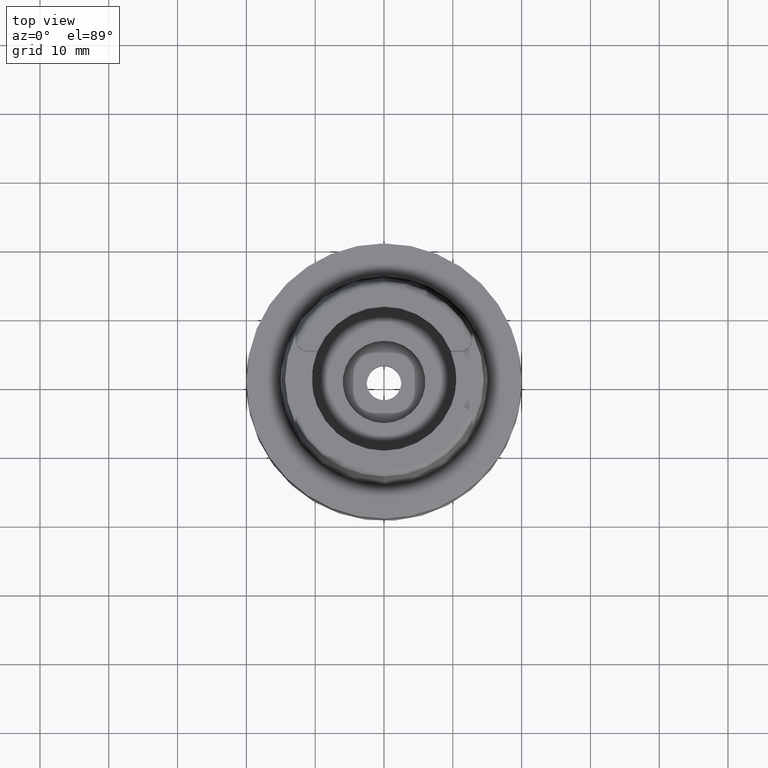
[diagram: clean part render]
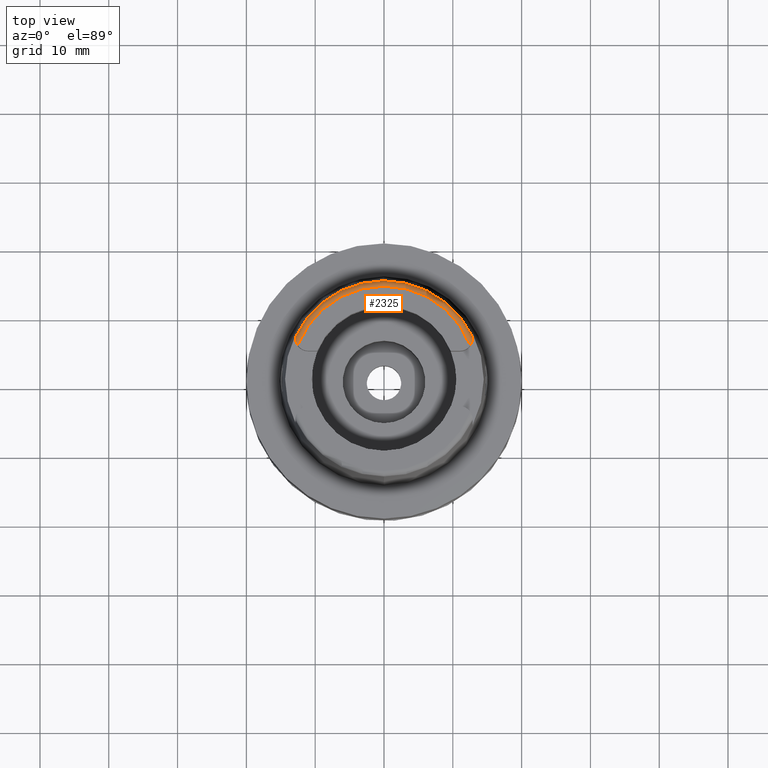
[diagram: same view with one face highlighted and labeled with its STEP entity id]
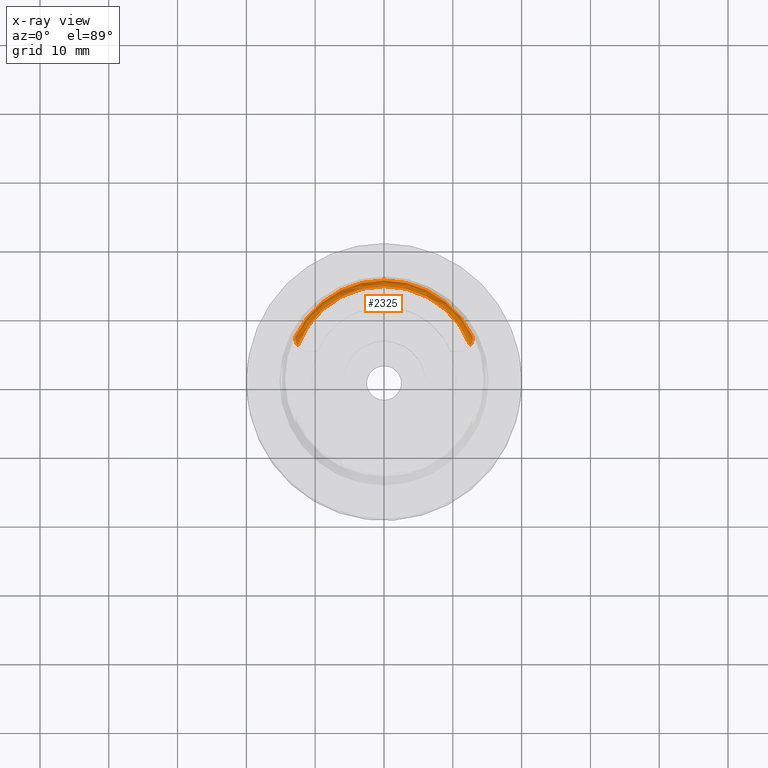
[diagram: x-ray of the same camera — body ghosted, the highlighted face saturated]
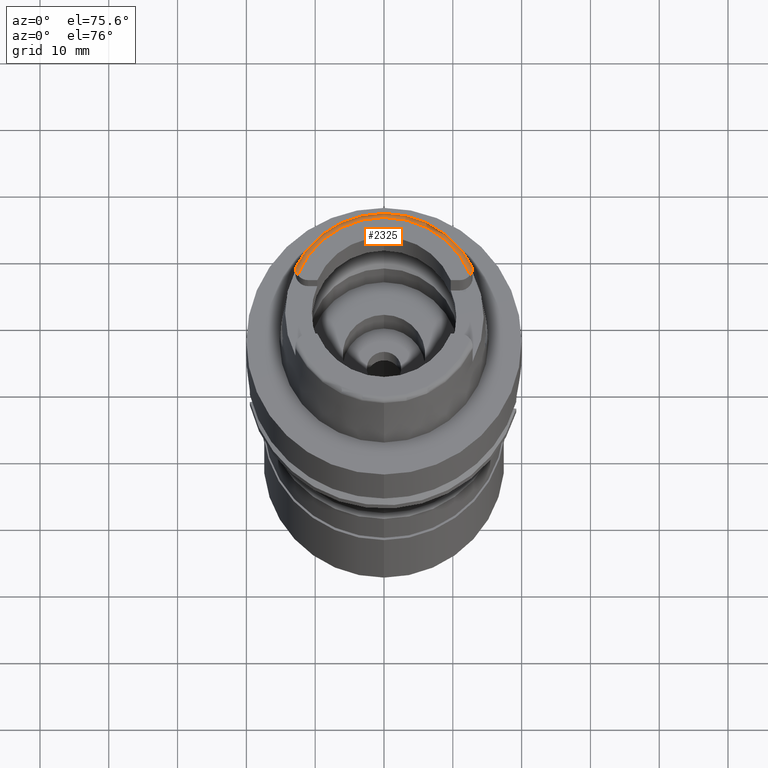
[diagram: same view with one face highlighted and labeled with its STEP entity id]
A machine part, top view. The second image highlights one B-rep face of the part: STEP entity #2325.
The next image is the same camera in x-ray: the body ghosted, the highlighted face saturated — about 0% of this face is hidden behind the body in this view.
A second angle (auxiliary view) of the same face is appended — the face is thin or edge-on in the first view.
In plain terms, the highlighted toroidal blend (fillet) surface has major radius 13.439 mm and minor (blend) radius 0.8 mm.
Its self-contained STEP definition (entity closure, byte-faithful):
#27 = CARTESIAN_POINT ( 'NONE',  ( -12.64389823460517981, 4.987559460299655356, 19.98922798322290717 ) ) ;
#46 = EDGE_CURVE ( 'NONE', #1021, #1718, #457, .T. ) ;
#70 = DIRECTION ( 'NONE',  ( 0.0000000000000000000, 0.0000000000000000000, -1.000000000000000000 ) ) ;
#105 = ORIENTED_EDGE ( 'NONE', *, *, #3492, .F. ) ;
#106 = CARTESIAN_POINT ( 'NONE',  ( -12.82744306054747163, 5.460575906995444484, 19.82401658476522144 ) ) ;
#212 = VERTEX_POINT ( 'NONE', #5254 ) ;
#255 = AXIS2_PLACEMENT_3D ( 'NONE', #2771, #4113, #2007 ) ;
#320 = CARTESIAN_POINT ( 'NONE',  ( -12.87999984758999972, 6.024574419621999688, 19.38140592774999860 ) ) ;
#380 = CARTESIAN_POINT ( 'NONE',  ( 12.82745486551941916, 5.460625297467630368, 19.82399013494508822 ) ) ;
#457 = B_SPLINE_CURVE_WITH_KNOTS ( 'NONE', 3,
 ( #3428, #4694, #27, #844, #2615, #4284, #1791, #2156, #106, #1366, #513, #3880, #2209, #3049 ),
 .UNSPECIFIED., .F., .F.,
 ( 4, 2, 2, 2, 2, 2, 4 ),
 ( 0.0000000000000000000, 0.2500000000000012768, 0.3750000000000009992, 0.5000000000000007772, 0.6250000000000005551, 0.7500000000000002220, 1.000000000000000000 ),
 .UNSPECIFIED. ) ;
#484 = FACE_OUTER_BOUND ( 'NONE', #5063, .T. ) ;
#500 = CARTESIAN_POINT ( 'NONE',  ( 0.0000000000000000000, 1.459778984583999657E-14, 19.23995141520000018 ) ) ;
#501 = DIRECTION ( 'NONE',  ( 0.0000000000000000000, 1.000000000000000000, 0.0000000000000000000 ) ) ;
#513 = CARTESIAN_POINT ( 'NONE',  ( -12.85775438148876759, 5.612682368652730069, 19.74128417118501133 ) ) ;
#571 = CARTESIAN_POINT ( 'NONE',  ( 12.73822212237592666, 5.159219471015187075, 19.95690879106319926 ) ) ;
#580 = DIRECTION ( 'NONE',  ( 0.0000000000000000000, 0.0000000000000000000, -1.000000000000000000 ) ) ;
#737 = CARTESIAN_POINT ( 'NONE',  ( -12.88000004355000172, 5.975771536551000018, 19.45451906537000042 ) ) ;
#802 = EDGE_CURVE ( 'NONE', #1718, #5011, #3536, .T. ) ;
#844 = CARTESIAN_POINT ( 'NONE',  ( -12.70904137643579368, 5.120141916626728573, 19.95691193289166065 ) ) ;
#875 = CARTESIAN_POINT ( 'NONE',  ( 12.87042361990018158, 5.709163046207873293, 19.68052350906720349 ) ) ;
#899 = CARTESIAN_POINT ( 'NONE',  ( 12.81380718898481597, 5.407804085198687716, 19.84918076872118320 ) ) ;
#1021 = VERTEX_POINT ( 'NONE', #3897 ) ;
#1220 = EDGE_CURVE ( 'NONE', #1021, #1298, #3958, .T. ) ;
#1239 = CARTESIAN_POINT ( 'NONE',  ( 12.88000000000000078, 5.904999999999999361, 19.52698079989999869 ) ) ;
#1292 = CARTESIAN_POINT ( 'NONE',  ( 12.87421802856394848, 5.752092751324438424, 19.65104068428572859 ) ) ;
#1298 = VERTEX_POINT ( 'NONE', #4946 ) ;
#1345 = EDGE_CURVE ( 'NONE', #212, #4934, #3778, .T. ) ;
#1366 = CARTESIAN_POINT ( 'NONE',  ( -12.84906366375178521, 5.561453087077073754, 19.77088246347384626 ) ) ;
#1371 = CARTESIAN_POINT ( 'NONE',  ( 12.54148453352999937, 4.828791175991000273, 20.00000000000000000 ) ) ;
#1409 = AXIS2_PLACEMENT_3D ( 'NONE', #4226, #4684, #501 ) ;
#1440 = B_SPLINE_CURVE_WITH_KNOTS ( 'NONE', 3,
 ( #1239, #4131, #3717, #1292, #875, #1627, #3297, #380, #899, #571, #4786, #1371 ),
 .UNSPECIFIED., .F., .F.,
 ( 4, 2, 2, 2, 2, 4 ),
 ( 0.0000000000000000000, 0.1250000000000006106, 0.2500000000000012212, 0.3750000000000018319, 0.5000000000000024425, 1.000000000000000000 ),
 .UNSPECIFIED. ) ;
#1565 = CARTESIAN_POINT ( 'NONE',  ( 12.88000642478999858, 6.068395837171999929, 19.23995141520000018 ) ) ;
#1627 = CARTESIAN_POINT ( 'NONE',  ( 12.85756953630095367, 5.611278962010326943, 19.74217032426101426 ) ) ;
#1681 = DIRECTION ( 'NONE',  ( -0.001485959642573941777, -0.9999988959613608230, 0.0000000000000000000 ) ) ;
#1706 = CARTESIAN_POINT ( 'NONE',  ( 0.0000000000000000000, 1.459778984583999657E-14, 19.19999999999999929 ) ) ;
#1718 = VERTEX_POINT ( 'NONE', #4967 ) ;
#1791 = CARTESIAN_POINT ( 'NONE',  ( -12.78304080223922057, 5.306621608253750288, 19.89302625439962213 ) ) ;
#1963 = CARTESIAN_POINT ( 'NONE',  ( -12.88000000000000078, 5.904999999999999361, 19.52698079989999869 ) ) ;
#1995 = ORIENTED_EDGE ( 'NONE', *, *, #1220, .T. ) ;
#2007 = DIRECTION ( 'NONE',  ( 0.001485959642573941777, 0.9999988959613608230, 0.0000000000000000000 ) ) ;
#2072 = CARTESIAN_POINT ( 'NONE',  ( 12.88000026769999984, 6.024572578858000682, 19.38140265424999953 ) ) ;
#2097 = CARTESIAN_POINT ( 'NONE',  ( 12.88000000000000078, 5.930777412943999849, 19.50299289468999930 ) ) ;
#2103 = EDGE_CURVE ( 'NONE', #4934, #4394, #3894, .T. ) ;
#2126 = CARTESIAN_POINT ( 'NONE',  ( 12.88000000000000078, 5.904999999999999361, 19.52698079989999869 ) ) ;
#2156 = CARTESIAN_POINT ( 'NONE',  ( -12.81432654523994330, 5.409509950254903998, 19.84844534295038088 ) ) ;
#2209 = CARTESIAN_POINT ( 'NONE',  ( -12.88000000000000078, 5.837299868718135443, 19.58998108373228675 ) ) ;
#2318 = CARTESIAN_POINT ( 'NONE',  ( -12.87999878070000115, 6.068418773950000400, 19.23992099960999980 ) ) ;
#2325 = ADVANCED_FACE ( 'NONE', ( #484 ), #2391, .T. ) ;
#2360 = CIRCLE ( 'NONE', #5433, 14.23797715756000670 ) ;
#2366 = CARTESIAN_POINT ( 'NONE',  ( -12.88000056611000055, 6.055733239969999460, 19.30913425348999723 ) ) ;
#2391 = TOROIDAL_SURFACE ( 'NONE', #2740, 13.43897535253999997, 0.8000000000000000444 ) ;
#2397 = CARTESIAN_POINT ( 'NONE',  ( 12.88000214159999857, 6.065728059948000350, 19.26272221817999863 ) ) ;
#2448 = CARTESIAN_POINT ( 'NONE',  ( 12.87999900568999934, 6.055739194563000360, 19.30915149895999861 ) ) ;
#2615 = CARTESIAN_POINT ( 'NONE',  ( -12.72932058135331168, 5.165803685848186610, 19.94344691192031860 ) ) ;
#2625 = ORIENTED_EDGE ( 'NONE', *, *, #1345, .F. ) ;
#2740 = AXIS2_PLACEMENT_3D ( 'NONE', #1706, #70, #1681 ) ;
#2771 = CARTESIAN_POINT ( 'NONE',  ( 0.0000000000000000000, 1.459778984583999657E-14, 20.00000000000000000 ) ) ;
#2869 = ORIENTED_EDGE ( 'NONE', *, *, #46, .F. ) ;
#2921 = ORIENTED_EDGE ( 'NONE', *, *, #2103, .F. ) ;
#3006 = CARTESIAN_POINT ( 'NONE',  ( 12.88000642478999858, 6.068395837171999929, 19.23995141520000018 ) ) ;
#3049 = CARTESIAN_POINT ( 'NONE',  ( -12.88000000000000078, 5.904999999999999361, 19.52698079989999869 ) ) ;
#3293 = CARTESIAN_POINT ( 'NONE',  ( -12.87999878070000115, 6.068418773950000400, 19.23992099960999980 ) ) ;
#3297 = CARTESIAN_POINT ( 'NONE',  ( 12.84907007999159845, 5.561488717738146015, 19.77086364943658836 ) ) ;
#3428 = CARTESIAN_POINT ( 'NONE',  ( -12.54148453352999937, 4.828791175990000184, 20.00000000000000000 ) ) ;
#3492 = EDGE_CURVE ( 'NONE', #5011, #212, #2360, .T. ) ;
#3536 = B_SPLINE_CURVE_WITH_KNOTS ( 'NONE', 3,
 ( #1963, #4126, #737, #320, #2366, #4897, #3293 ),
 .UNSPECIFIED., .F., .F.,
 ( 4, 1, 1, 1, 4 ),
 ( 0.0000000000000000000, 0.2500000000000000000, 0.5000000000000000000, 0.7500000000000000000, 1.000000000000000000 ),
 .UNSPECIFIED. ) ;
#3717 = CARTESIAN_POINT ( 'NONE',  ( 12.87909565908326925, 5.833772552298477798, 19.58958531203102638 ) ) ;
#3734 = CARTESIAN_POINT ( 'NONE',  ( 12.88000000000000078, 5.904999999999999361, 19.52698079989999869 ) ) ;
#3778 = CIRCLE ( 'NONE', #1409, 14.23797715755999782 ) ;
#3880 = CARTESIAN_POINT ( 'NONE',  ( -12.87648933023193187, 5.755361931065436920, 19.65143196203258569 ) ) ;
#3894 = B_SPLINE_CURVE_WITH_KNOTS ( 'NONE', 3,
 ( #1565, #2397, #2448, #2072, #4533, #2097, #3734 ),
 .UNSPECIFIED., .F., .F.,
 ( 4, 1, 1, 1, 4 ),
 ( 0.0000000000000000000, 0.2500000000000000000, 0.5000000000000000000, 0.7500000000000000000, 1.000000000000000000 ),
 .UNSPECIFIED. ) ;
#3897 = CARTESIAN_POINT ( 'NONE',  ( -12.54148453352999937, 4.828791175990000184, 20.00000000000000000 ) ) ;
#3958 = CIRCLE ( 'NONE', #255, 13.43897535254000175 ) ;
#4113 = DIRECTION ( 'NONE',  ( 0.0000000000000000000, 0.0000000000000000000, -1.000000000000000000 ) ) ;
#4126 = CARTESIAN_POINT ( 'NONE',  ( -12.88000000000000078, 5.930780971578999861, 19.50298958309999975 ) ) ;
#4131 = CARTESIAN_POINT ( 'NONE',  ( 12.87999999999999901, 5.871156771543482478, 19.55847457927823285 ) ) ;
#4198 = ORIENTED_EDGE ( 'NONE', *, *, #802, .F. ) ;
#4226 = CARTESIAN_POINT ( 'NONE',  ( 0.0000000000000000000, 1.459778984583999657E-14, 19.23995141520000018 ) ) ;
#4284 = CARTESIAN_POINT ( 'NONE',  ( -12.76658230671586836, 5.259904799625505945, 19.91113086158905787 ) ) ;
#4299 = DIRECTION ( 'NONE',  ( -0.9046226299953515904, 0.4262134410131772633, 0.0000000000000000000 ) ) ;
#4394 = VERTEX_POINT ( 'NONE', #2126 ) ;
#4533 = CARTESIAN_POINT ( 'NONE',  ( 12.87999992350999889, 5.975765008381999976, 19.45452933925999872 ) ) ;
#4585 = ORIENTED_EDGE ( 'NONE', *, *, #5213, .F. ) ;
#4684 = DIRECTION ( 'NONE',  ( 0.0000000000000000000, 0.0000000000000000000, -1.000000000000000000 ) ) ;
#4694 = CARTESIAN_POINT ( 'NONE',  ( -12.59473610511157737, 4.905064917798310553, 19.99999999999999645 ) ) ;
#4786 = CARTESIAN_POINT ( 'NONE',  ( 12.64800759646182549, 4.981367191263350591, 20.00000000000000355 ) ) ;
#4897 = CARTESIAN_POINT ( 'NONE',  ( -12.87999878070000115, 6.065738585166998931, 19.26276686237000035 ) ) ;
#4934 = VERTEX_POINT ( 'NONE', #3006 ) ;
#4946 = CARTESIAN_POINT ( 'NONE',  ( 12.54148453352999937, 4.828791175991000273, 20.00000000000000000 ) ) ;
#4967 = CARTESIAN_POINT ( 'NONE',  ( -12.88000000000000078, 5.904999999999999361, 19.52698079989999869 ) ) ;
#5011 = VERTEX_POINT ( 'NONE', #2318 ) ;
#5063 = EDGE_LOOP ( 'NONE', ( #2869, #1995, #4585, #2921, #2625, #105, #4198 ) ) ;
#5213 = EDGE_CURVE ( 'NONE', #4394, #1298, #1440, .T. ) ;
#5254 = CARTESIAN_POINT ( 'NONE',  ( 0.0000000000000000000, 14.23797715755999782, 19.23995141520000018 ) ) ;
#5433 = AXIS2_PLACEMENT_3D ( 'NONE', #500, #580, #4299 ) ;